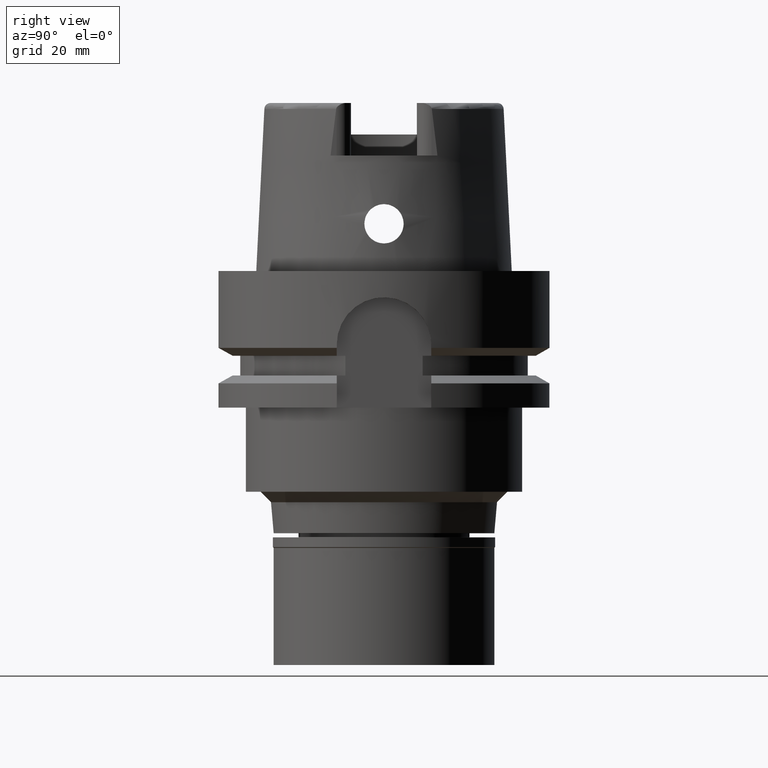
[diagram: clean part render]
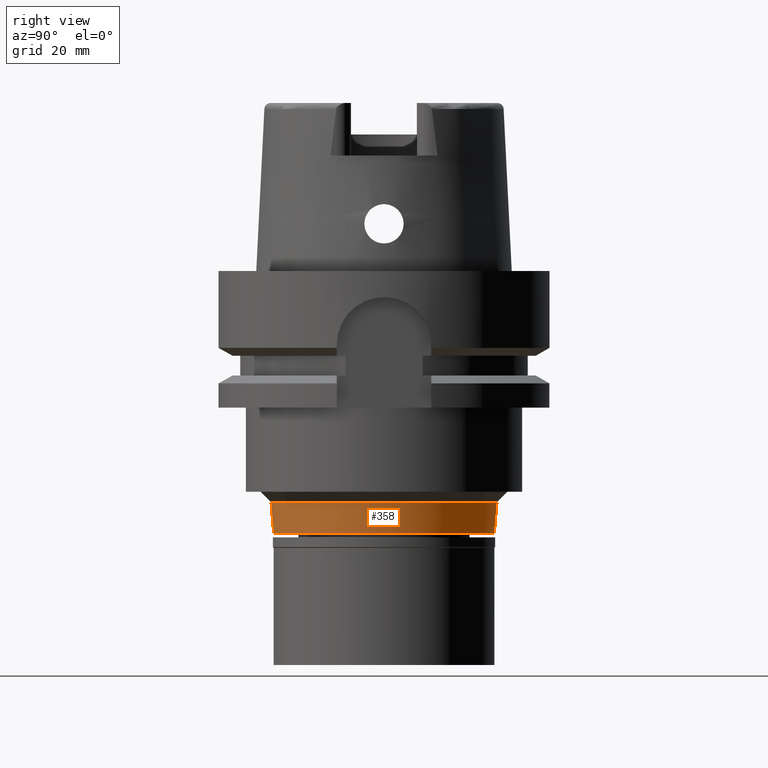
[diagram: same view with one face highlighted and labeled with its STEP entity id]
A machine part, right view. The second image highlights one B-rep face of the part: STEP entity #358.
In plain terms, the highlighted conical surface has half-angle 5 deg.
Its self-contained STEP definition (entity closure, byte-faithful):
#38 = ORIENTED_EDGE ( 'NONE', *, *, #1316, .T. ) ;
#81 = DIRECTION ( 'NONE',  ( 0.0000000000000000000, -1.000000000000000000, 0.0000000000000000000 ) ) ;
#157 = DIRECTION ( 'NONE',  ( 0.0000000000000000000, 0.0000000000000000000, 1.000000000000000000 ) ) ;
#358 = ADVANCED_FACE ( 'NONE', ( #1713 ), #4896, .T. ) ;
#433 = VERTEX_POINT ( 'NONE', #5315 ) ;
#591 = CARTESIAN_POINT ( 'NONE',  ( 0.0000000000000000000, 0.0000000000000000000, -44.00000000000000000 ) ) ;
#1313 = CIRCLE ( 'NONE', #4190, 21.00000000000000000 ) ;
#1316 = EDGE_CURVE ( 'NONE', #3150, #1481, #1313, .T. ) ;
#1350 = DIRECTION ( 'NONE',  ( 0.0000000000000000000, 1.000000000000000000, 0.0000000000000000000 ) ) ;
#1481 = VERTEX_POINT ( 'NONE', #3562 ) ;
#1522 = EDGE_LOOP ( 'NONE', ( #5044, #4001, #38, #1699 ) ) ;
#1630 = LINE ( 'NONE', #4586, #3088 ) ;
#1699 = ORIENTED_EDGE ( 'NONE', *, *, #1779, .F. ) ;
#1713 = FACE_OUTER_BOUND ( 'NONE', #1522, .T. ) ;
#1752 = AXIS2_PLACEMENT_3D ( 'NONE', #2567, #4217, #1350 ) ;
#1779 = EDGE_CURVE ( 'NONE', #4259, #1481, #1630, .T. ) ;
#2567 = CARTESIAN_POINT ( 'NONE',  ( 0.0000000000000000000, 0.0000000000000000000, -46.94999999999999574 ) ) ;
#2659 = DIRECTION ( 'NONE',  ( 0.0000000000000000000, 0.08715574274744689043, -0.9961946980917639749 ) ) ;
#2684 = DIRECTION ( 'NONE',  ( 0.0000000000000000000, -1.000000000000000000, 0.0000000000000000000 ) ) ;
#2708 = EDGE_CURVE ( 'NONE', #433, #4259, #3105, .T. ) ;
#2912 = CARTESIAN_POINT ( 'NONE',  ( 0.0000000000000000000, 21.51618311480000045, -44.00000000000000000 ) ) ;
#3031 = VECTOR ( 'NONE', #2659, 1000.000000000000114 ) ;
#3088 = VECTOR ( 'NONE', #4640, 1000.000000000000114 ) ;
#3102 = CARTESIAN_POINT ( 'NONE',  ( 0.0000000000000000000, -21.00000000000000000, -49.89999999999999858 ) ) ;
#3105 = CIRCLE ( 'NONE', #5177, 21.51618311480000045 ) ;
#3146 = CARTESIAN_POINT ( 'NONE',  ( 0.0000000000000000000, -21.51618311480000045, -44.00000000000000000 ) ) ;
#3150 = VERTEX_POINT ( 'NONE', #3102 ) ;
#3533 = LINE ( 'NONE', #3146, #3031 ) ;
#3562 = CARTESIAN_POINT ( 'NONE',  ( 0.0000000000000000000, 21.00000000000000000, -49.89999999999999858 ) ) ;
#3591 = CARTESIAN_POINT ( 'NONE',  ( 0.0000000000000000000, 0.0000000000000000000, -49.89999999999999858 ) ) ;
#3896 = DIRECTION ( 'NONE',  ( 0.0000000000000000000, 0.0000000000000000000, 1.000000000000000000 ) ) ;
#4001 = ORIENTED_EDGE ( 'NONE', *, *, #4723, .T. ) ;
#4190 = AXIS2_PLACEMENT_3D ( 'NONE', #3591, #3896, #81 ) ;
#4217 = DIRECTION ( 'NONE',  ( 0.0000000000000000000, 0.0000000000000000000, 1.000000000000000000 ) ) ;
#4259 = VERTEX_POINT ( 'NONE', #2912 ) ;
#4586 = CARTESIAN_POINT ( 'NONE',  ( 0.0000000000000000000, 21.51618311480000045, -44.00000000000000000 ) ) ;
#4640 = DIRECTION ( 'NONE',  ( 0.0000000000000000000, -0.08715574274744689043, -0.9961946980917639749 ) ) ;
#4723 = EDGE_CURVE ( 'NONE', #433, #3150, #3533, .T. ) ;
#4896 = CONICAL_SURFACE ( 'NONE', #1752, 21.25809155740000023, 0.08726646259969973729 ) ;
#5044 = ORIENTED_EDGE ( 'NONE', *, *, #2708, .F. ) ;
#5177 = AXIS2_PLACEMENT_3D ( 'NONE', #591, #157, #2684 ) ;
#5315 = CARTESIAN_POINT ( 'NONE',  ( 0.0000000000000000000, -21.51618311480000045, -44.00000000000000000 ) ) ;